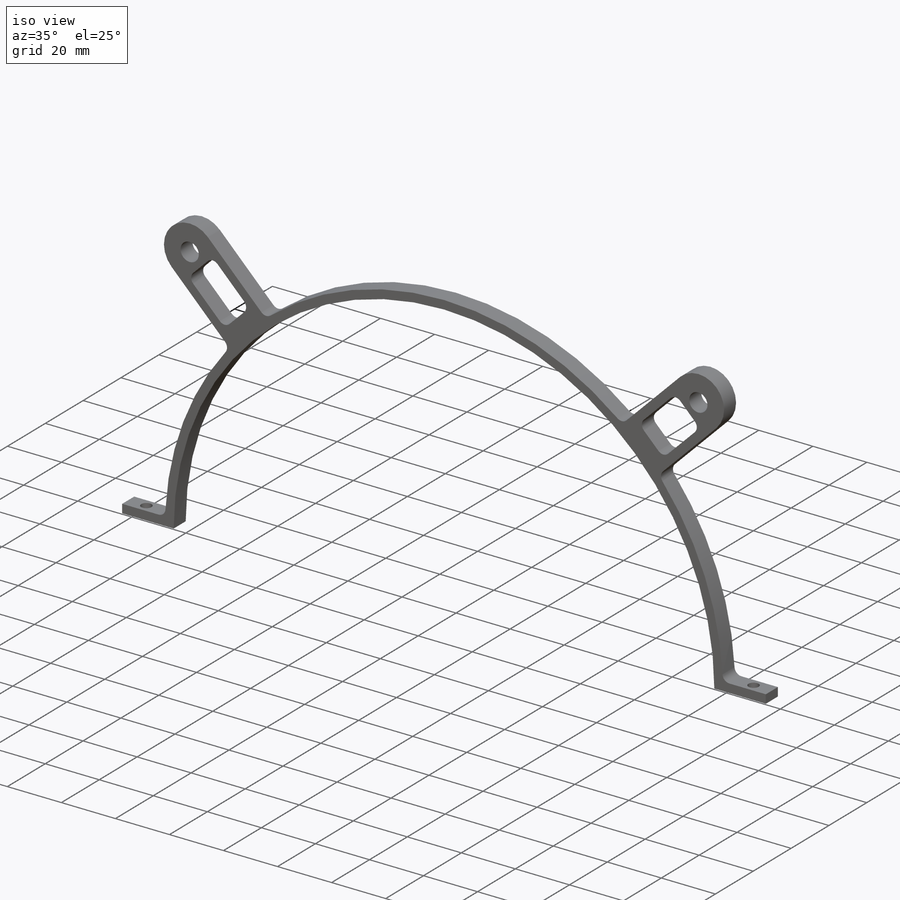
[diagram: iso view]
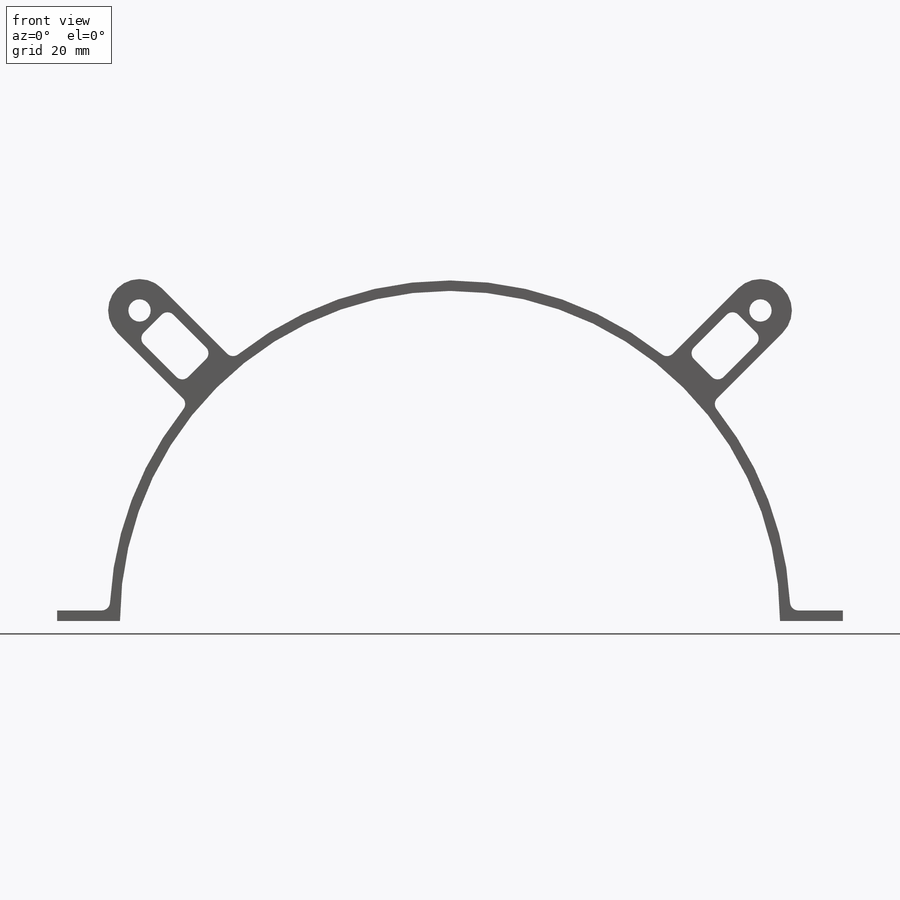
[diagram: front view]
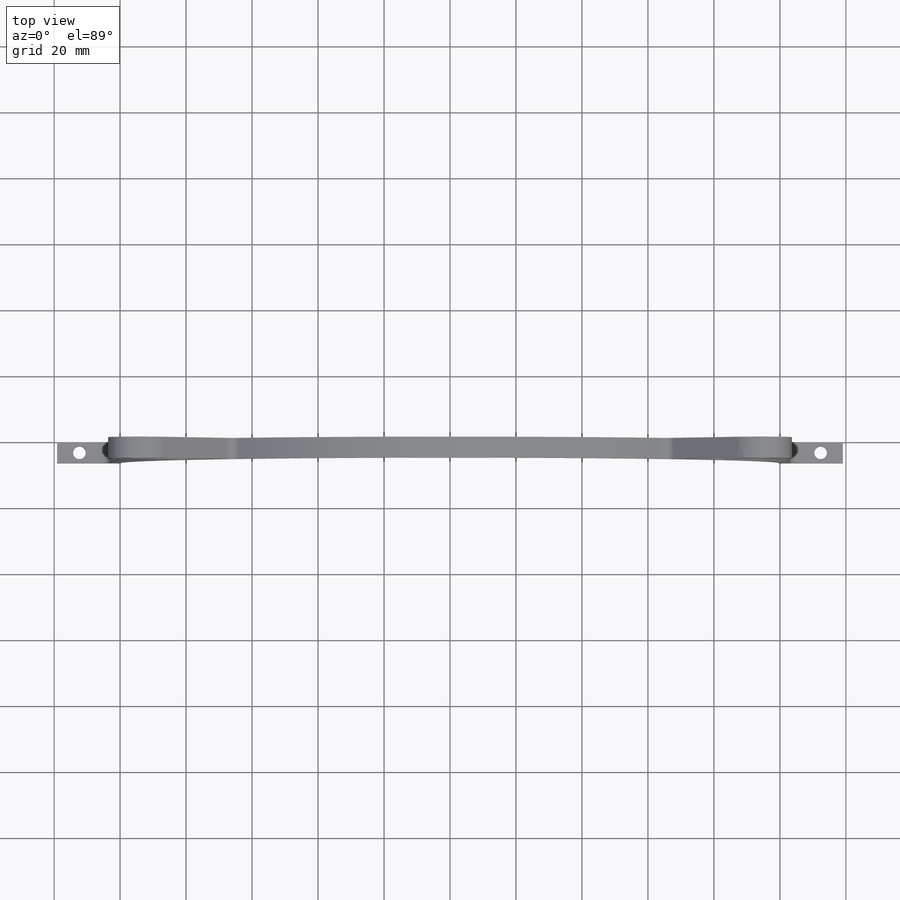
[diagram: top view]
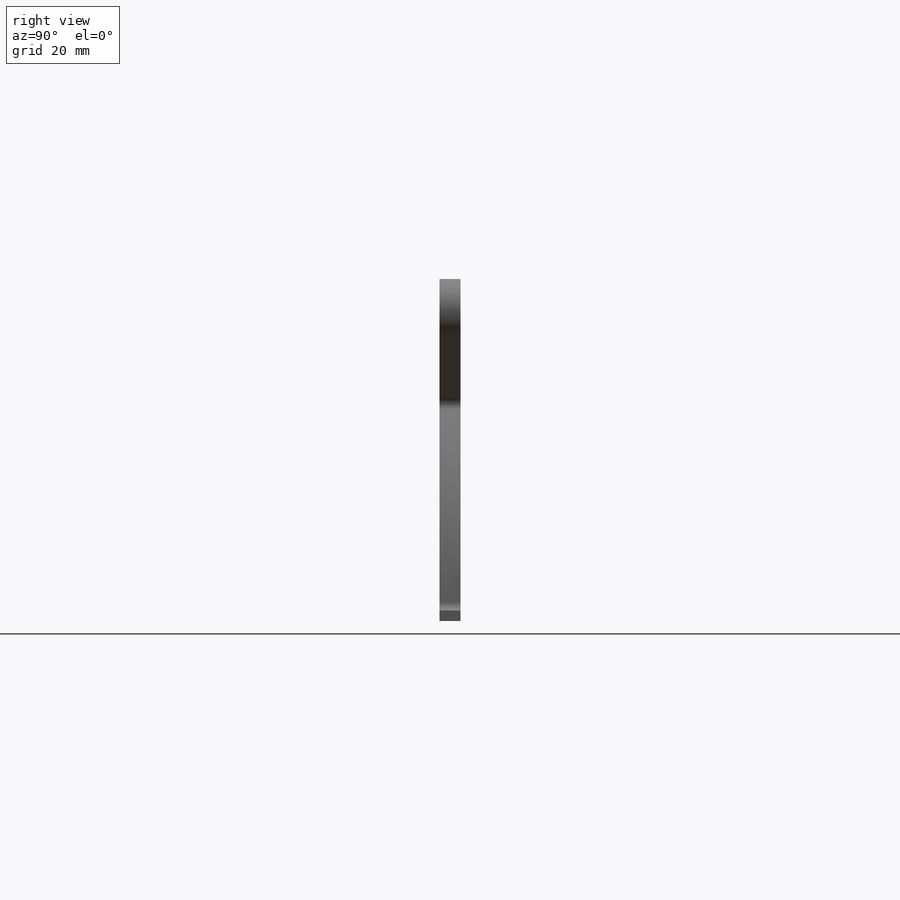
[diagram: right view]
SOLIDWORKS PART (.sldprt)
format: sldprt  version: not decoded by parser v0  size: 275,968 bytes
history: native  units: mm
features: sketch x6, extrude x2, fillet x2, hole x2, material x1, mirror x1 (+11 scaffold rows collapsed)
feature tree (25):
  scaffold x11  (default folders/planes/origin — collapsed)
  material  "6061-T6 (SS)"
  sketch  "Sketch1"  dims[D1=100.0379mm D2=19.05mm D3=19.05mm D4=3.175mm]
  extrude  "Boss-Extrude1"  Depth=6.35mm
  fillet  "Fillet1"  Radius=2.54mm
  sketch  "Sketch2"  dims[c1.D2=9.525mm c1.D1=133.096mm c1.D3=~94.113084mm c1.D4=12.7mm c1.D5=19.05mm c1.D6=9.525mm c1.D7=12.7mm c2.D7=90.0deg c3.D7=6.35mm]
  extrude  "Boss-Extrude2"  Depth=6.35mm
  fillet  "Fillet2"  Radius=2.54mm
  hole  "1/4 Clearance Hole1"  Diameter=6.7564mm Depth=25.4mm
  sketch  "Sketch4"
  sketch  "Sketch3"  dims[hole-wizard template sketch: 50 standard entries collapsed; hole parameters above]
  hole  "#6 Clearance Hole1"  Diameter=3.7973mm Depth=25.4mm
  sketch  "Sketch6"
  sketch  "Sketch5"  dims[hole-wizard template sketch: 50 standard entries collapsed; hole parameters above]
  mirror  "Mirror1"
decode coverage: 10 of 13 modeling features carry decoded parameters
note: ~ marks probable driven/reference dimensions
note: suppression state not decoded; provenance and decode notes live in map.json
